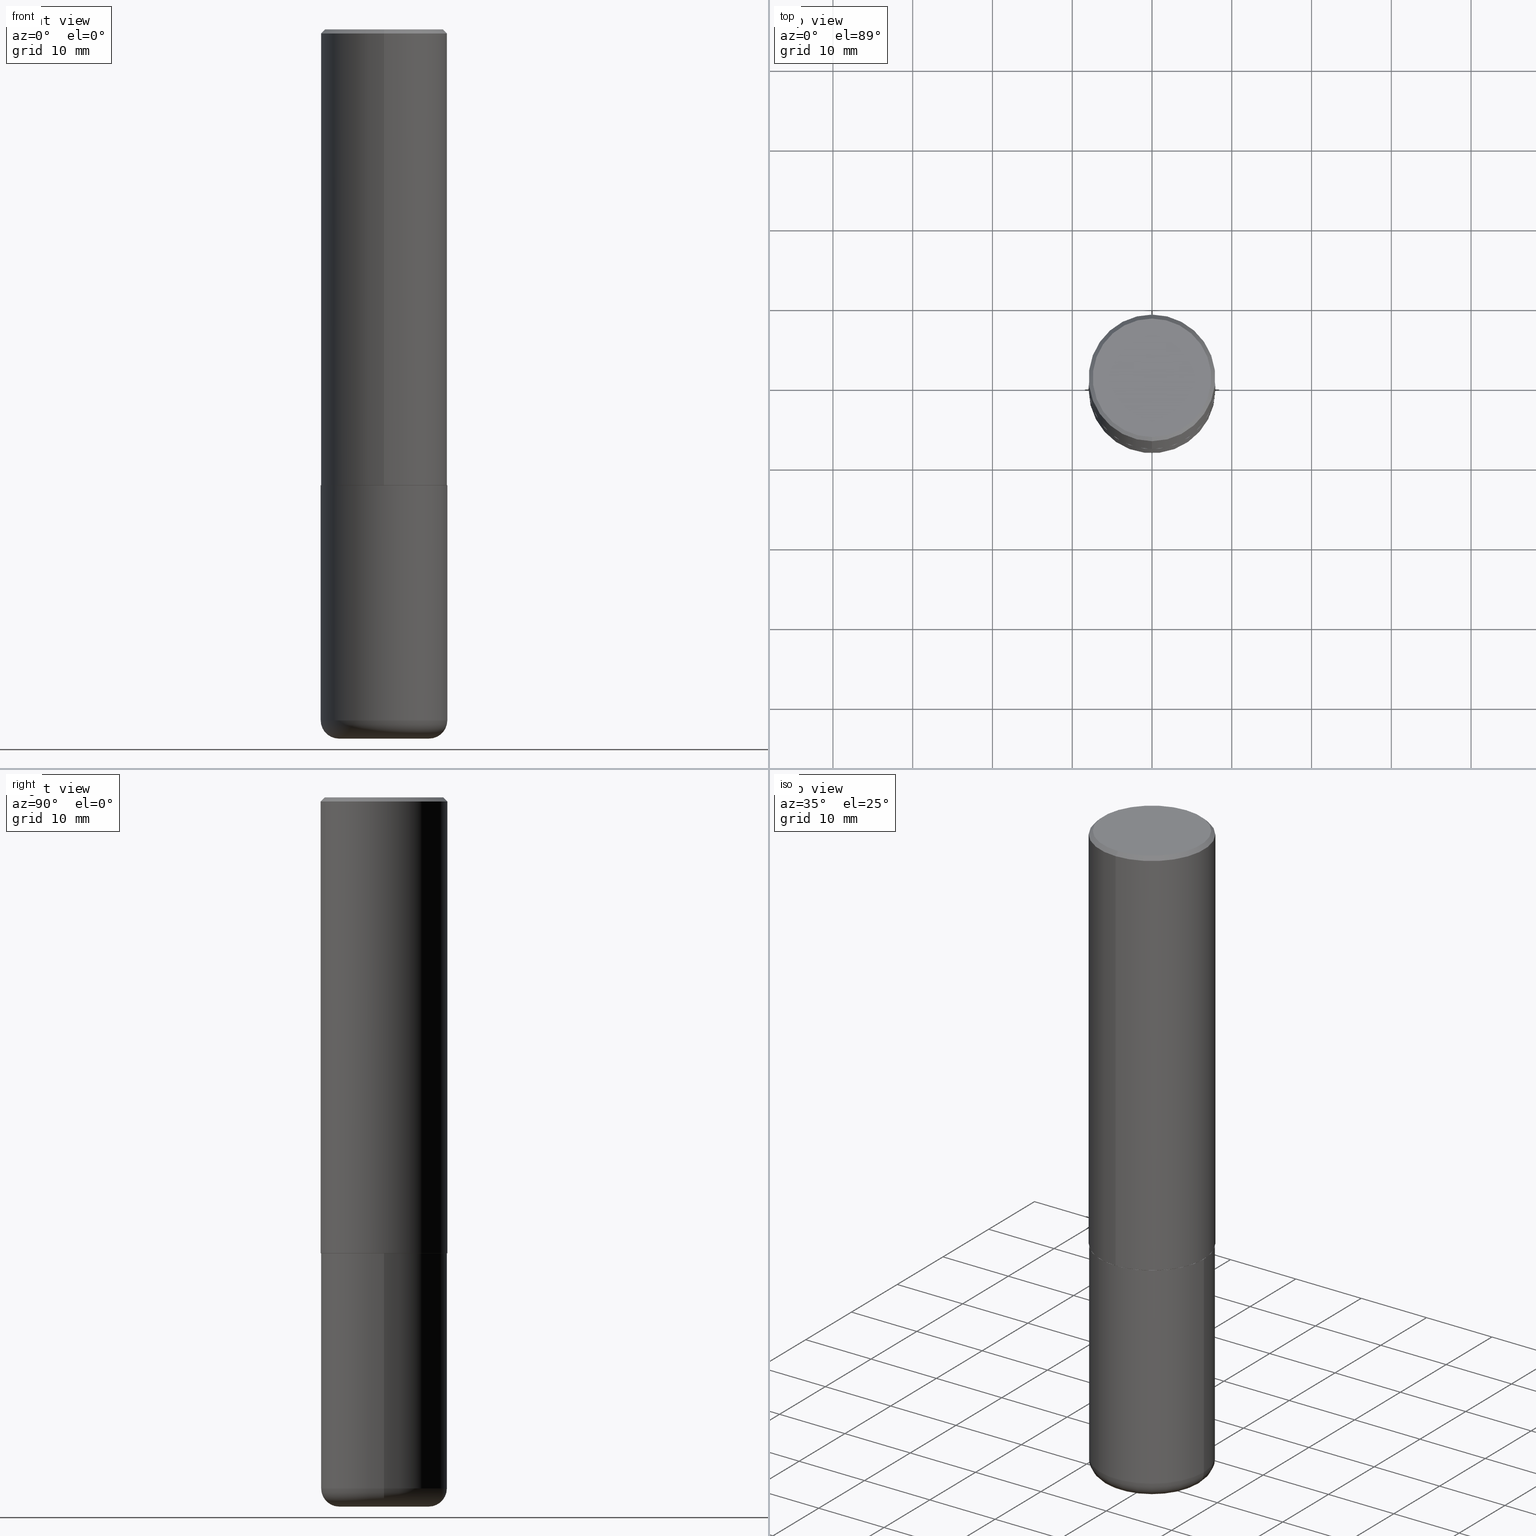
[diagram: canonical four-view strip — front | top / right | iso, engineering-drawing reading convention]
A machine part, canonical four-view strip (front | top / right | iso — engineering-drawing reading convention). The complete STEP part file that produces these views, byte-faithful:
ISO-10303-21;
HEADER;
FILE_DESCRIPTION (( 'STEP AP203' ),
    '1' );
FILE_NAME ('38283.STEP',
    '2024-03-02T20:47:42',
    ( '' ),
    ( '' ),
    'SwSTEP 2.0',
    'SolidWorks 2023',
    '' );
FILE_SCHEMA (( 'CONFIG_CONTROL_DESIGN' ));
ENDSEC;

DATA;
#1 = CARTESIAN_POINT ( 'NONE',  ( 4.892540898795069594E-31, -6.980666680272634172E-17, -0.02000000000000006981 ) ) ;
#2 = LINE ( 'NONE', #200, #236 ) ;
#3 = CIRCLE ( 'NONE', #415, 0.3125000000000000000 ) ;
#4 = AXIS2_PLACEMENT_3D ( 'NONE', #311, #57, #281 ) ;
#5 = LOCAL_TIME ( 15, 47, 42.00000000000000000, #256 ) ;
#6 = CARTESIAN_POINT ( 'NONE',  ( 5.504108511144434074E-29, -7.853250015306685809E-15, -2.249999999999999556 ) ) ;
#7 = CARTESIAN_POINT ( 'NONE',  ( 0.3124999999999998890, -1.408812720223208442E-14, -3.410000000000000142 ) ) ;
#8 = EDGE_CURVE ( 'NONE', #356, #210, #254, .T. ) ;
#9 = CARTESIAN_POINT ( 'NONE',  ( 2.220446049250313475E-15, 0.3125000000000001665, -1.090729168792595755E-15 ) ) ;
#10 = VECTOR ( 'NONE', #129, 39.37007874015748854 ) ;
#11 = AXIS2_PLACEMENT_3D ( 'NONE', #288, #283, #92 ) ;
#12 = DIRECTION ( 'NONE',  ( 6.982962677686265133E-15, 1.000000000000000000, -3.496765431890256920E-15 ) ) ;
#13 = ORIENTED_EDGE ( 'NONE', *, *, #267, .T. ) ;
#14 = EDGE_CURVE ( 'NONE', #58, #114, #204, .T. ) ;
#15 = DIRECTION ( 'NONE',  ( 7.105427357601001859E-15, 1.000000000000000000, -3.491481338843145583E-15 ) ) ;
#16 = EDGE_LOOP ( 'NONE', ( #304, #60, #81, #366 ) ) ;
#17 = EDGE_CURVE ( 'NONE', #282, #50, #32, .T. ) ;
#18 = ADVANCED_BREP_SHAPE_REPRESENTATION ( '38283', ( #369, #108, #22 ), #96 ) ;
#19 = FACE_OUTER_BOUND ( 'NONE', #335, .T. ) ;
#20 = ORIENTED_EDGE ( 'NONE', *, *, #192, .T. ) ;
#21 = AXIS2_PLACEMENT_3D ( 'NONE', #231, #349, #324 ) ;
#22 = AXIS2_PLACEMENT_3D ( 'NONE', #411, #255, #377 ) ;
#23 = DIRECTION ( 'NONE',  ( -2.446270449397526442E-29, 3.490333340136305154E-15, 1.000000000000000000 ) ) ;
#24 = VERTEX_POINT ( 'NONE', #235 ) ;
#25 = DATE_AND_TIME ( #378, #5 ) ;
#26 = ADVANCED_FACE ( 'NONE', ( #172 ), #144, .F. ) ;
#27 = EDGE_LOOP ( 'NONE', ( #48, #215, #183, #273 ) ) ;
#28 = PRODUCT ( '38283', '38283', '', ( #94 ) ) ;
#29 =( LENGTH_UNIT ( ) NAMED_UNIT ( * ) SI_UNIT ( $, .METRE. ) );
#30 = CONICAL_SURFACE ( 'NONE', #166, 0.3114999999999999991, 0.7853981633974141952 ) ;
#31 = AXIS2_PLACEMENT_3D ( 'NONE', #80, #146, #400 ) ;
#32 = LINE ( 'NONE', #90, #212 ) ;
#33 = EDGE_CURVE ( 'NONE', #399, #58, #264, .T. ) ;
#34 = APPLICATION_PROTOCOL_DEFINITION ( 'international standard', 'config_control_design', 1994, #64 ) ;
#35 = DIRECTION ( 'NONE',  ( -6.982962677686265133E-15, -1.000000000000000000, 3.496765431890256920E-15 ) ) ;
#36 = COORDINATED_UNIVERSAL_TIME_OFFSET ( 5, 0, .BEHIND. ) ;
#37 = VECTOR ( 'NONE', #333, 39.37007874015748143 ) ;
#38 = CIRCLE ( 'NONE', #4, 0.3114999999999999991 ) ;
#39 = PLANE ( 'NONE',  #402 ) ;
#40 = APPROVAL ( #393, 'UNSPECIFIED' ) ;
#41 = EDGE_LOOP ( 'NONE', ( #185, #392, #20, #155 ) ) ;
#42 = DIRECTION ( 'NONE',  ( 1.000000000000000000, -6.982962677686269077E-15, 0.000000000000000000 ) ) ;
#43 = CIRCLE ( 'NONE', #197, 0.3125000000000002776 ) ;
#44 = PERSON_AND_ORGANIZATION ( #316, #193 ) ;
#45 = CC_DESIGN_PERSON_AND_ORGANIZATION_ASSIGNMENT ( #65, #251, ( #28 ) ) ;
#46 = CARTESIAN_POINT ( 'NONE',  ( 8.339048629091315302E-29, -1.190595136545512608E-14, -3.410000000000000142 ) ) ;
#47 = DIMENSIONAL_EXPONENTS ( 1.000000000000000000, 0.000000000000000000, 0.000000000000000000, 0.000000000000000000, 0.000000000000000000, 0.000000000000000000, 0.000000000000000000 ) ;
#48 = ORIENTED_EDGE ( 'NONE', *, *, #17, .F. ) ;
#49 = DIRECTION ( 'NONE',  ( -2.445468806185136597E-29, 3.491481338843145583E-15, 1.000000000000000000 ) ) ;
#50 = VERTEX_POINT ( 'NONE', #175 ) ;
#51 = DIRECTION ( 'NONE',  ( -1.000000000000000000, 7.105427357600996337E-15, 0.000000000000000000 ) ) ;
#52 = ADVANCED_FACE ( 'NONE', ( #292 ), #390, .T. ) ;
#53 = EDGE_LOOP ( 'NONE', ( #56, #13, #119, #107 ) ) ;
#54 = AXIS2_PLACEMENT_3D ( 'NONE', #240, #340, #59 ) ;
#55 = DIRECTION ( 'NONE',  ( -6.982962677686266711E-15, -1.000000000000000000, 3.490333340136305549E-15 ) ) ;
#56 = ORIENTED_EDGE ( 'NONE', *, *, #269, .F. ) ;
#57 = DIRECTION ( 'NONE',  ( -2.446270449397526442E-29, 3.490333340136305154E-15, 1.000000000000000000 ) ) ;
#58 = VERTEX_POINT ( 'NONE', #331 ) ;
#59 = DIRECTION ( 'NONE',  ( -6.982962677686265922E-15, -1.000000000000000000, 3.496765431890253764E-15 ) ) ;
#60 = ORIENTED_EDGE ( 'NONE', *, *, #337, .T. ) ;
#61 =( CONVERSION_BASED_UNIT ( 'INCH', #346 ) LENGTH_UNIT ( ) NAMED_UNIT ( #47 ) );
#62 = CC_DESIGN_PERSON_AND_ORGANIZATION_ASSIGNMENT ( #389, #105, ( #173 ) ) ;
#63 = EDGE_LOOP ( 'NONE', ( #275, #143 ) ) ;
#64 = APPLICATION_CONTEXT ( 'configuration controlled 3d designs of mechanical parts and assemblies' ) ;
#65 = PERSON_AND_ORGANIZATION ( #316, #193 ) ;
#66 = CIRCLE ( 'NONE', #291, 0.3125000000000000000 ) ;
#67 = COORDINATED_UNIVERSAL_TIME_OFFSET ( 5, 0, .BEHIND. ) ;
#68 = DATE_TIME_ROLE ( 'classification_date' ) ;
#69 = DIRECTION ( 'NONE',  ( 1.000000000000000000, -6.982962677686265133E-15, 0.000000000000000000 ) ) ;
#70 = COORDINATED_UNIVERSAL_TIME_OFFSET ( 5, 0, .BEHIND. ) ;
#71 = CARTESIAN_POINT ( 'NONE',  ( 8.339048629091315302E-29, -1.190595136545512608E-14, -3.410000000000000142 ) ) ;
#72 = DIRECTION ( 'NONE',  ( 1.000000000000000000, -6.982962677686264344E-15, 4.883557194083111780E-29 ) ) ;
#73 = PERSON_AND_ORGANIZATION_ROLE ( 'classification_officer' ) ;
#74 = DIRECTION ( 'NONE',  ( -2.445468806185136597E-29, 3.491481338843145583E-15, 1.000000000000000000 ) ) ;
#75 = LOCAL_TIME ( 15, 47, 42.00000000000000000, #230 ) ;
#76 = ORIENTED_EDGE ( 'NONE', *, *, #127, .F. ) ;
#77 = DIRECTION ( 'NONE',  ( -1.000000000000000000, 6.982962677686265922E-15, -4.876176775795935793E-29 ) ) ;
#78 = CARTESIAN_POINT ( 'NONE',  ( -0.2225000000000000033, -1.032499377838890215E-14, -3.410000000000000142 ) ) ;
#79 = ORIENTED_EDGE ( 'NONE', *, *, #418, .F. ) ;
#80 = CARTESIAN_POINT ( 'NONE',  ( 0.000000000000000000, 0.000000000000000000, 0.000000000000000000 ) ) ;
#81 = ORIENTED_EDGE ( 'NONE', *, *, #8, .T. ) ;
#82 = CIRCLE ( 'NONE', #317, 0.3125000000000000000 ) ;
#83 = CIRCLE ( 'NONE', #134, 0.2225000000000000033 ) ;
#84 = CARTESIAN_POINT ( 'NONE',  ( -0.3125000000000000000, -7.660446139675788393E-15, -2.249999999999999556 ) ) ;
#85 = ORIENTED_EDGE ( 'NONE', *, *, #269, .T. ) ;
#86 = CARTESIAN_POINT ( 'NONE',  ( -2.182175836776905099E-15, -0.3125000000000081601, -2.248999999999998334 ) ) ;
#87 = EDGE_LOOP ( 'NONE', ( #363, #374, #341, #332 ) ) ;
#88 = DIRECTION ( 'NONE',  ( -6.982962677686265922E-15, -1.000000000000000000, 3.507991003100177457E-15 ) ) ;
#89 = CIRCLE ( 'NONE', #313, 0.08999999999999964972 ) ;
#90 = CARTESIAN_POINT ( 'NONE',  ( -2.143905624303602824E-15, -0.3125000000000000555, -0.01999999999999897693 ) ) ;
#91 = ORIENTED_EDGE ( 'NONE', *, *, #201, .F. ) ;
#92 = DIRECTION ( 'NONE',  ( 1.000000000000000000, -6.982962677686266711E-15, 4.876176775795936353E-29 ) ) ;
#93 = ADVANCED_FACE ( 'NONE', ( #100 ), #220, .T. ) ;
#94 = MECHANICAL_CONTEXT ( 'NONE', #407, 'mechanical' ) ;
#95 = PERSON_AND_ORGANIZATION ( #316, #193 ) ;
#96 =( GEOMETRIC_REPRESENTATION_CONTEXT ( 3 ) GLOBAL_UNCERTAINTY_ASSIGNED_CONTEXT ( ( #110 ) ) GLOBAL_UNIT_ASSIGNED_CONTEXT ( ( #61, #315, #222 ) ) REPRESENTATION_CONTEXT ( 'NONE', 'WORKASPACE' ) );
#97 = DATE_TIME_ROLE ( 'creation_date' ) ;
#98 = PRODUCT_RELATED_PRODUCT_CATEGORY ( 'detail', '', ( #28 ) ) ;
#99 = CARTESIAN_POINT ( 'NONE',  ( -2.182175836776959136E-15, -0.3125000000000001665, 1.090729168792595755E-15 ) ) ;
#100 = FACE_OUTER_BOUND ( 'NONE', #87, .T. ) ;
#101 = CLOSED_SHELL ( 'NONE', ( #242, #360, #213, #365, #248, #104, #141, #178 ) ) ;
#102 = AXIS2_PLACEMENT_3D ( 'NONE', #284, #225, #409 ) ;
#103 = DIRECTION ( 'NONE',  ( 2.438088387897960049E-29, -3.491481338843145188E-15, -1.000000000000000000 ) ) ;
#104 = ADVANCED_FACE ( 'NONE', ( #302 ), #30, .T. ) ;
#105 = PERSON_AND_ORGANIZATION_ROLE ( 'design_supplier' ) ;
#106 = FACE_OUTER_BOUND ( 'NONE', #63, .T. ) ;
#107 = ORIENTED_EDGE ( 'NONE', *, *, #413, .F. ) ;
#108 = MANIFOLD_SOLID_BREP ( 'Body-Move/Copy2[2]', #101 ) ;
#109 = CARTESIAN_POINT ( 'NONE',  ( 8.559140821647976968E-29, -1.222018468595100619E-14, -3.499999999999999112 ) ) ;
#110 = UNCERTAINTY_MEASURE_WITH_UNIT (LENGTH_MEASURE( 1.000000000000000082E-05 ), #61, 'distance_accuracy_value', 'NONE');
#111 = LOCAL_TIME ( 15, 47, 42.00000000000000000, #67 ) ;
#112 = ORIENTED_EDGE ( 'NONE', *, *, #33, .F. ) ;
#113 = DIRECTION ( 'NONE',  ( -6.982962677686265133E-15, -1.000000000000000000, 3.490333340136304366E-15 ) ) ;
#114 = VERTEX_POINT ( 'NONE', #7 ) ;
#115 = EDGE_CURVE ( 'NONE', #114, #24, #261, .T. ) ;
#116 = CARTESIAN_POINT ( 'NONE',  ( 5.501662240695034719E-29, -7.849759681966548232E-15, -2.248999999999999222 ) ) ;
#117 = CARTESIAN_POINT ( 'NONE',  ( 4.892540898795069594E-31, -6.980666680272634172E-17, -0.02000000000000006981 ) ) ;
#118 = AXIS2_PLACEMENT_3D ( 'NONE', #262, #355, #77 ) ;
#119 = ORIENTED_EDGE ( 'NONE', *, *, #135, .T. ) ;
#120 = CONICAL_SURFACE ( 'NONE', #238, 0.3125000000000000000, 0.7853981633974473908 ) ;
#121 = CARTESIAN_POINT ( 'NONE',  ( -2.075300644325887493E-15, -0.2924999999999999267, 1.050466299798821304E-15 ) ) ;
#122 = CYLINDRICAL_SURFACE ( 'NONE', #396, 0.3125000000000000000 ) ;
#123 = ORIENTED_EDGE ( 'NONE', *, *, #195, .T. ) ;
#124 = EDGE_LOOP ( 'NONE', ( #91, #112 ) ) ;
#125 = AXIS2_PLACEMENT_3D ( 'NONE', #109, #268, #301 ) ;
#126 = APPROVAL_PERSON_ORGANIZATION ( #194, #165, #382 ) ;
#127 = EDGE_CURVE ( 'NONE', #24, #344, #147, .T. ) ;
#128 = CARTESIAN_POINT ( 'NONE',  ( -0.3125000000000000000, 2.220446049250313081E-15, -1.537167215704658232E-29 ) ) ;
#129 = DIRECTION ( 'NONE',  ( -4.937700262164378437E-15, -0.7071067811865208164, 0.7071067811865739960 ) ) ;
#130 = CC_DESIGN_DATE_AND_TIME_ASSIGNMENT ( #326, #68, ( #180 ) ) ;
#131 = PERSON_AND_ORGANIZATION_ROLE ( 'creator' ) ;
#132 = CARTESIAN_POINT ( 'NONE',  ( -2.175192874099216718E-15, -0.3115000000000078817, -2.249999999999998668 ) ) ;
#133 = APPROVAL_STATUS ( 'not_yet_approved' ) ;
#134 = AXIS2_PLACEMENT_3D ( 'NONE', #266, #327, #42 ) ;
#135 = EDGE_CURVE ( 'NONE', #210, #50, #171, .T. ) ;
#136 = DIRECTION ( 'NONE',  ( -6.982962677686265922E-15, -1.000000000000000000, 3.507991003100177457E-15 ) ) ;
#137 = PERSON_AND_ORGANIZATION ( #316, #193 ) ;
#138 = DIRECTION ( 'NONE',  ( 1.000000000000000000, -6.982962677686269077E-15, 0.000000000000000000 ) ) ;
#139 = ORIENTED_EDGE ( 'NONE', *, *, #33, .T. ) ;
#140 = CALENDAR_DATE ( 2024, 2, 3 ) ;
#141 = ADVANCED_FACE ( 'NONE', ( #106 ), #145, .F. ) ;
#142 = DIRECTION ( 'NONE',  ( 5.024295867787889629E-15, 0.7071067811865257013, 0.7071067811865691111 ) ) ;
#143 = ORIENTED_EDGE ( 'NONE', *, *, #337, .F. ) ;
#144 = PLANE ( 'NONE',  #118 ) ;
#145 = PLANE ( 'NONE',  #21 ) ;
#146 = DIRECTION ( 'NONE',  ( -2.446270449397526442E-29, 3.490333340136305154E-15, 1.000000000000000000 ) ) ;
#147 = CIRCLE ( 'NONE', #187, 0.3125000000000000000 ) ;
#148 = CC_DESIGN_SECURITY_CLASSIFICATION ( #180, ( #173 ) ) ;
#149 = DIRECTION ( 'NONE',  ( 1.000000000000000000, -6.982962677686266711E-15, 4.876176775795936353E-29 ) ) ;
#150 = EDGE_LOOP ( 'NONE', ( #314, #188 ) ) ;
#151 = FACE_OUTER_BOUND ( 'NONE', #221, .T. ) ;
#152 = ORIENTED_EDGE ( 'NONE', *, *, #260, .T. ) ;
#153 = DIRECTION ( 'NONE',  ( 2.446270449397526442E-29, -3.490333340136305154E-15, -1.000000000000000000 ) ) ;
#154 = CC_DESIGN_DATE_AND_TIME_ASSIGNMENT ( #25, #97, ( #227 ) ) ;
#155 = ORIENTED_EDGE ( 'NONE', *, *, #207, .F. ) ;
#156 = LOCAL_TIME ( 15, 47, 42.00000000000000000, #36 ) ;
#157 = DIRECTION ( 'NONE',  ( 6.982962677686265133E-15, 1.000000000000000000, -3.496765431890256920E-15 ) ) ;
#158 = ORIENTED_EDGE ( 'NONE', *, *, #199, .T. ) ;
#159 = CALENDAR_DATE ( 2024, 2, 3 ) ;
#160 = APPROVAL_STATUS ( 'not_yet_approved' ) ;
#161 = EDGE_CURVE ( 'NONE', #344, #24, #82, .T. ) ;
#162 = VECTOR ( 'NONE', #343, 39.37007874015748143 ) ;
#163 = CALENDAR_DATE ( 2024, 2, 3 ) ;
#164 = APPLICATION_PROTOCOL_DEFINITION ( 'international standard', 'config_control_design', 1994, #407 ) ;
#165 = APPROVAL ( #160, 'UNSPECIFIED' ) ;
#166 = AXIS2_PLACEMENT_3D ( 'NONE', #6, #233, #136 ) ;
#167 = PERSON_AND_ORGANIZATION_ROLE ( 'creator' ) ;
#168 = AXIS2_PLACEMENT_3D ( 'NONE', #271, #405, #177 ) ;
#169 = SECURITY_CLASSIFICATION_LEVEL ( 'unclassified' ) ;
#170 = DIRECTION ( 'NONE',  ( 6.982962677686265922E-15, 1.000000000000000000, -3.490333340136305154E-15 ) ) ;
#171 = LINE ( 'NONE', #99, #37 ) ;
#172 = FACE_OUTER_BOUND ( 'NONE', #218, .T. ) ;
#173 = PRODUCT_DEFINITION_FORMATION_WITH_SPECIFIED_SOURCE ( 'ANY', '', #28, .NOT_KNOWN. ) ;
#174 = SHAPE_DEFINITION_REPRESENTATION ( #286, #18 ) ;
#175 = CARTESIAN_POINT ( 'NONE',  ( -2.143905624303602824E-15, -0.3125000000000000555, -0.01999999999999897693 ) ) ;
#176 = EDGE_CURVE ( 'NONE', #401, #114, #3, .T. ) ;
#177 = DIRECTION ( 'NONE',  ( -6.982962677686266711E-15, -1.000000000000000000, 3.490333340136305549E-15 ) ) ;
#178 = ADVANCED_FACE ( 'NONE', ( #386 ), #39, .F. ) ;
#179 = DIRECTION ( 'NONE',  ( -2.446270449397526161E-29, 3.490333340136305154E-15, 1.000000000000000000 ) ) ;
#180 = SECURITY_CLASSIFICATION ( '', '', #169 ) ;
#181 = VERTEX_POINT ( 'NONE', #295 ) ;
#182 = FACE_OUTER_BOUND ( 'NONE', #239, .T. ) ;
#183 = ORIENTED_EDGE ( 'NONE', *, *, #207, .T. ) ;
#184 = LINE ( 'NONE', #338, #388 ) ;
#185 = ORIENTED_EDGE ( 'NONE', *, *, #250, .F. ) ;
#186 = CARTESIAN_POINT ( 'NONE',  ( 5.504108511144434074E-29, -7.853250015306685809E-15, -2.249999999999999556 ) ) ;
#187 = AXIS2_PLACEMENT_3D ( 'NONE', #383, #74, #353 ) ;
#188 = ORIENTED_EDGE ( 'NONE', *, *, #250, .T. ) ;
#189 = CARTESIAN_POINT ( 'NONE',  ( -0.2225000000000000033, -1.016236620754480236E-14, -3.499999999999999112 ) ) ;
#190 = CARTESIAN_POINT ( 'NONE',  ( 2.182175836776958741E-15, 0.3124999999999999445, -0.02000000000000116268 ) ) ;
#191 = CC_DESIGN_APPROVAL ( #216, ( #173 ) ) ;
#192 = EDGE_CURVE ( 'NONE', #50, #404, #321, .T. ) ;
#193 = ORGANIZATION ( 'UNSPECIFIED', 'UNSPECIFIED', '' ) ;
#194 = PERSON_AND_ORGANIZATION ( #316, #193 ) ;
#195 = EDGE_CURVE ( 'NONE', #114, #401, #312, .T. ) ;
#196 = CARTESIAN_POINT ( 'NONE',  ( 4.892540898795069594E-31, -6.980666680272634172E-17, -0.02000000000000006981 ) ) ;
#197 = AXIS2_PLACEMENT_3D ( 'NONE', #116, #23, #217 ) ;
#198 = CARTESIAN_POINT ( 'NONE',  ( 1.456070253248337680E-28, -3.625606728355569702E-15, -3.499999999999999112 ) ) ;
#199 = EDGE_CURVE ( 'NONE', #181, #354, #2, .T. ) ;
#200 = CARTESIAN_POINT ( 'NONE',  ( 2.213340621892766504E-15, 0.3114999999999921720, -2.250000000000000888 ) ) ;
#201 = EDGE_CURVE ( 'NONE', #58, #399, #83, .T. ) ;
#202 = DIRECTION ( 'NONE',  ( -2.445468806185136597E-29, 3.491481338843145583E-15, 1.000000000000000000 ) ) ;
#203 = DATE_AND_TIME ( #159, #75 ) ;
#204 = CIRCLE ( 'NONE', #305, 0.08999999999999964972 ) ;
#205 = CARTESIAN_POINT ( 'NONE',  ( 2.042516583223232540E-15, 0.2924999999999999267, -1.006150603085393049E-15 ) ) ;
#206 = AXIS2_PLACEMENT_3D ( 'NONE', #398, #308, #55 ) ;
#207 = EDGE_CURVE ( 'NONE', #280, #404, #184, .T. ) ;
#208 = DIRECTION ( 'NONE',  ( -2.445468806185136877E-29, 3.491481338843145188E-15, 1.000000000000000000 ) ) ;
#209 = FACE_OUTER_BOUND ( 'NONE', #53, .T. ) ;
#210 = VERTEX_POINT ( 'NONE', #86 ) ;
#211 = CARTESIAN_POINT ( 'NONE',  ( 4.892540898795069594E-31, -6.980666680272634172E-17, -0.02000000000000006981 ) ) ;
#212 = VECTOR ( 'NONE', #226, 39.37007874015748143 ) ;
#213 = ADVANCED_FACE ( 'NONE', ( #361 ), #120, .T. ) ;
#214 = FACE_OUTER_BOUND ( 'NONE', #27, .T. ) ;
#215 = ORIENTED_EDGE ( 'NONE', *, *, #290, .F. ) ;
#216 = APPROVAL ( #133, 'UNSPECIFIED' ) ;
#217 = DIRECTION ( 'NONE',  ( -6.982962677686265922E-15, -1.000000000000000000, 3.496765431890253764E-15 ) ) ;
#218 = EDGE_LOOP ( 'NONE', ( #263, #277 ) ) ;
#219 = CARTESIAN_POINT ( 'NONE',  ( -2.175192874099216718E-15, -0.3115000000000078817, -2.249999999999998668 ) ) ;
#220 = TOROIDAL_SURFACE ( 'NONE', #345, 0.2225000000000000033, 0.08999999999999964972 ) ;
#221 = EDGE_LOOP ( 'NONE', ( #123, #224, #76, #387 ) ) ;
#222 =( NAMED_UNIT ( * ) SI_UNIT ( $, .STERADIAN. ) SOLID_ANGLE_UNIT ( ) );
#223 = CC_DESIGN_PERSON_AND_ORGANIZATION_ASSIGNMENT ( #44, #73, ( #180 ) ) ;
#224 = ORIENTED_EDGE ( 'NONE', *, *, #418, .T. ) ;
#225 = DIRECTION ( 'NONE',  ( -2.445468806185136597E-29, 3.491481338843145583E-15, 1.000000000000000000 ) ) ;
#226 = DIRECTION ( 'NONE',  ( -4.851104656540959542E-15, -0.7071067811865493491, -0.7071067811865457964 ) ) ;
#227 = PRODUCT_DEFINITION ( 'UNKNOWN', '', #173, #358 ) ;
#228 = CIRCLE ( 'NONE', #279, 0.3114999999999999991 ) ;
#229 = LINE ( 'NONE', #128, #162 ) ;
#230 = COORDINATED_UNIVERSAL_TIME_OFFSET ( 5, 0, .BEHIND. ) ;
#231 = CARTESIAN_POINT ( 'NONE',  ( 5.504108511144434074E-29, -7.853250015306685809E-15, -2.249999999999999556 ) ) ;
#232 = VECTOR ( 'NONE', #179, 39.37007874015748143 ) ;
#233 = DIRECTION ( 'NONE',  ( -2.446270449397526442E-29, 3.490333340136305154E-15, 1.000000000000000000 ) ) ;
#234 = DIRECTION ( 'NONE',  ( -1.000000000000000000, 6.982962677686265922E-15, -4.876176775795935793E-29 ) ) ;
#235 = CARTESIAN_POINT ( 'NONE',  ( 0.3125000000000000000, -1.003800884917403364E-14, -2.249999999999999556 ) ) ;
#236 = VECTOR ( 'NONE', #142, 39.37007874015748854 ) ;
#237 = DIRECTION ( 'NONE',  ( -6.982962677686265133E-15, -1.000000000000000000, 3.496765431890256920E-15 ) ) ;
#238 = AXIS2_PLACEMENT_3D ( 'NONE', #211, #153, #157 ) ;
#239 = EDGE_LOOP ( 'NONE', ( #297, #158, #310, #253 ) ) ;
#240 = CARTESIAN_POINT ( 'NONE',  ( 5.501662240695034719E-29, -7.849759681966548232E-15, -2.248999999999999222 ) ) ;
#241 = DIRECTION ( 'NONE',  ( -2.446270449397526442E-29, 3.490333340136305154E-15, 1.000000000000000000 ) ) ;
#242 = ADVANCED_FACE ( 'NONE', ( #182 ), #372, .T. ) ;
#243 = ORIENTED_EDGE ( 'NONE', *, *, #161, .F. ) ;
#244 = FACE_OUTER_BOUND ( 'NONE', #370, .T. ) ;
#245 = ORIENTED_EDGE ( 'NONE', *, *, #300, .F. ) ;
#246 = DIRECTION ( 'NONE',  ( -2.446270449397526442E-29, 3.490333340136305154E-15, 1.000000000000000000 ) ) ;
#247 = ORIENTED_EDGE ( 'NONE', *, *, #176, .F. ) ;
#248 = ADVANCED_FACE ( 'NONE', ( #209 ), #334, .T. ) ;
#249 = DIRECTION ( 'NONE',  ( -2.445468806185136597E-29, 3.491481338843145583E-15, 1.000000000000000000 ) ) ;
#250 = EDGE_CURVE ( 'NONE', #282, #280, #410, .T. ) ;
#251 = PERSON_AND_ORGANIZATION_ROLE ( 'design_owner' ) ;
#252 = CLOSED_SHELL ( 'NONE', ( #319, #93, #26, #395, #385, #52 ) ) ;
#253 = ORIENTED_EDGE ( 'NONE', *, *, #8, .F. ) ;
#254 = LINE ( 'NONE', #132, #10 ) ;
#255 = DIRECTION ( 'NONE',  ( 0.000000000000000000, 0.000000000000000000, 1.000000000000000000 ) ) ;
#256 = COORDINATED_UNIVERSAL_TIME_OFFSET ( 5, 0, .BEHIND. ) ;
#257 = AXIS2_PLACEMENT_3D ( 'NONE', #1, #394, #237 ) ;
#258 = CC_DESIGN_APPROVAL ( #40, ( #180 ) ) ;
#259 = APPROVAL_ROLE ( '' ) ;
#260 = EDGE_CURVE ( 'NONE', #210, #354, #43, .T. ) ;
#261 = LINE ( 'NONE', #391, #328 ) ;
#262 = CARTESIAN_POINT ( 'NONE',  ( 5.502304813916556222E-29, -7.855833012397075293E-15, -2.249999999999999556 ) ) ;
#263 = ORIENTED_EDGE ( 'NONE', *, *, #127, .T. ) ;
#264 = CIRCLE ( 'NONE', #125, 0.2225000000000000033 ) ;
#265 = CONICAL_SURFACE ( 'NONE', #285, 0.3125000000000000000, 0.7853981633974473908 ) ;
#266 = CARTESIAN_POINT ( 'NONE',  ( 8.559140821647976968E-29, -1.222018468595100619E-14, -3.499999999999999112 ) ) ;
#267 = EDGE_CURVE ( 'NONE', #354, #210, #318, .T. ) ;
#268 = DIRECTION ( 'NONE',  ( -2.445468806185136597E-29, 3.491481338843145583E-15, 1.000000000000000000 ) ) ;
#269 = EDGE_CURVE ( 'NONE', #354, #404, #336, .T. ) ;
#270 = DIRECTION ( 'NONE',  ( -2.445468806185136597E-29, 3.491481338843145583E-15, 1.000000000000000000 ) ) ;
#271 = CARTESIAN_POINT ( 'NONE',  ( -7.227211954301492276E-46, 1.031177024868314748E-31, 2.954379780895211224E-17 ) ) ;
#272 = AXIS2_PLACEMENT_3D ( 'NONE', #278, #246, #113 ) ;
#273 = ORIENTED_EDGE ( 'NONE', *, *, #413, .T. ) ;
#274 = CARTESIAN_POINT ( 'NONE',  ( 2.112346210000095443E-15, 0.2924999999999999267, -9.913787041809170300E-16 ) ) ;
#275 = ORIENTED_EDGE ( 'NONE', *, *, #287, .F. ) ;
#276 = CARTESIAN_POINT ( 'NONE',  ( 0.000000000000000000, 0.000000000000000000, 0.000000000000000000 ) ) ;
#277 = ORIENTED_EDGE ( 'NONE', *, *, #161, .T. ) ;
#278 = CARTESIAN_POINT ( 'NONE',  ( 0.000000000000000000, 0.000000000000000000, 0.000000000000000000 ) ) ;
#279 = AXIS2_PLACEMENT_3D ( 'NONE', #368, #241, #88 ) ;
#280 = VERTEX_POINT ( 'NONE', #274 ) ;
#281 = DIRECTION ( 'NONE',  ( -6.982962677686265922E-15, -1.000000000000000000, 3.507991003100177457E-15 ) ) ;
#282 = VERTEX_POINT ( 'NONE', #121 ) ;
#283 = DIRECTION ( 'NONE',  ( -2.445468806185136597E-29, 3.491481338843145583E-15, 1.000000000000000000 ) ) ;
#284 = CARTESIAN_POINT ( 'NONE',  ( 8.339048629091315302E-29, -1.190595136545512608E-14, -3.410000000000000142 ) ) ;
#285 = AXIS2_PLACEMENT_3D ( 'NONE', #117, #306, #12 ) ;
#286 = PRODUCT_DEFINITION_SHAPE ( 'NONE', 'NONE',  #227 ) ;
#287 = EDGE_CURVE ( 'NONE', #356, #181, #38, .T. ) ;
#288 = CARTESIAN_POINT ( 'NONE',  ( 0.000000000000000000, 0.000000000000000000, 0.000000000000000000 ) ) ;
#289 = APPROVAL_DATE_TIME ( #414, #165 ) ;
#290 = EDGE_CURVE ( 'NONE', #280, #282, #403, .T. ) ;
#291 = AXIS2_PLACEMENT_3D ( 'NONE', #196, #375, #35 ) ;
#292 = FACE_OUTER_BOUND ( 'NONE', #124, .T. ) ;
#293 = CC_DESIGN_PERSON_AND_ORGANIZATION_ASSIGNMENT ( #294, #167, ( #173 ) ) ;
#294 = PERSON_AND_ORGANIZATION ( #316, #193 ) ;
#295 = CARTESIAN_POINT ( 'NONE',  ( 2.216893335571567797E-15, 0.3114999999999921720, -2.250000000000000888 ) ) ;
#296 = DIRECTION ( 'NONE',  ( 2.446270449397526161E-29, -3.490333340136305154E-15, -1.000000000000000000 ) ) ;
#297 = ORIENTED_EDGE ( 'NONE', *, *, #287, .T. ) ;
#298 = AXIS2_PLACEMENT_3D ( 'NONE', #198, #103, #234 ) ;
#299 = APPROVAL_PERSON_ORGANIZATION ( #137, #40, #347 ) ;
#300 = EDGE_CURVE ( 'NONE', #399, #401, #89, .T. ) ;
#301 = DIRECTION ( 'NONE',  ( 1.000000000000000000, -6.982962677686269077E-15, 0.000000000000000000 ) ) ;
#302 = FACE_OUTER_BOUND ( 'NONE', #16, .T. ) ;
#303 = FACE_OUTER_BOUND ( 'NONE', #309, .T. ) ;
#304 = ORIENTED_EDGE ( 'NONE', *, *, #199, .F. ) ;
#305 = AXIS2_PLACEMENT_3D ( 'NONE', #373, #379, #376 ) ;
#306 = DIRECTION ( 'NONE',  ( 2.446270449397526442E-29, -3.490333340136305154E-15, -1.000000000000000000 ) ) ;
#307 = ORIENTED_EDGE ( 'NONE', *, *, #115, .T. ) ;
#308 = DIRECTION ( 'NONE',  ( -2.446270449397526442E-29, 3.490333340136305154E-15, 1.000000000000000000 ) ) ;
#309 = EDGE_LOOP ( 'NONE', ( #152, #85, #339, #325 ) ) ;
#310 = ORIENTED_EDGE ( 'NONE', *, *, #260, .F. ) ;
#311 = CARTESIAN_POINT ( 'NONE',  ( 5.504108511144434074E-29, -7.853250015306685809E-15, -2.249999999999999556 ) ) ;
#312 = CIRCLE ( 'NONE', #371, 0.3125000000000000000 ) ;
#313 = AXIS2_PLACEMENT_3D ( 'NONE', #78, #15, #51 ) ;
#314 = ORIENTED_EDGE ( 'NONE', *, *, #290, .T. ) ;
#315 =( NAMED_UNIT ( * ) PLANE_ANGLE_UNIT ( ) SI_UNIT ( $, .RADIAN. ) );
#316 = PERSON ( 'UNSPECIFIED', 'UNSPECIFIED', 'UNSPECIFIED', ('UNSPECIFIED'), ('UNSPECIFIED'), ('UNSPECIFIED') ) ;
#317 = AXIS2_PLACEMENT_3D ( 'NONE', #351, #270, #69 ) ;
#318 = CIRCLE ( 'NONE', #54, 0.3125000000000002776 ) ;
#319 = ADVANCED_FACE ( 'NONE', ( #151 ), #122, .T. ) ;
#320 = CARTESIAN_POINT ( 'NONE',  ( -0.3124999999999998890, -9.685505316204812997E-15, -3.410000000000000142 ) ) ;
#321 = CIRCLE ( 'NONE', #257, 0.3125000000000000000 ) ;
#322 = TOROIDAL_SURFACE ( 'NONE', #102, 0.2225000000000000033, 0.08999999999999964972 ) ;
#323 = DIRECTION ( 'NONE',  ( 1.000000000000000000, -6.982962677686269077E-15, 0.000000000000000000 ) ) ;
#324 = DIRECTION ( 'NONE',  ( -6.982962677686265922E-15, -1.000000000000000000, 3.490333340136305154E-15 ) ) ;
#325 = ORIENTED_EDGE ( 'NONE', *, *, #135, .F. ) ;
#326 = DATE_AND_TIME ( #140, #156 ) ;
#327 = DIRECTION ( 'NONE',  ( -2.445468806185136597E-29, 3.491481338843145583E-15, 1.000000000000000000 ) ) ;
#328 = VECTOR ( 'NONE', #208, 39.37007874015748143 ) ;
#329 = APPROVAL_PERSON_ORGANIZATION ( #95, #216, #259 ) ;
#330 = CALENDAR_DATE ( 2024, 2, 3 ) ;
#331 = CARTESIAN_POINT ( 'NONE',  ( 0.2225000000000000033, -1.377389388173620116E-14, -3.499999999999999112 ) ) ;
#332 = ORIENTED_EDGE ( 'NONE', *, *, #14, .F. ) ;
#333 = DIRECTION ( 'NONE',  ( -2.446270449397526161E-29, 3.490333340136305154E-15, 1.000000000000000000 ) ) ;
#334 = CYLINDRICAL_SURFACE ( 'NONE', #272, 0.3125000000000001665 ) ;
#335 = EDGE_LOOP ( 'NONE', ( #79, #359, #307, #243 ) ) ;
#336 = LINE ( 'NONE', #9, #232 ) ;
#337 = EDGE_CURVE ( 'NONE', #181, #356, #228, .T. ) ;
#338 = CARTESIAN_POINT ( 'NONE',  ( 2.182175836776958741E-15, 0.3124999999999999445, -0.02000000000000116268 ) ) ;
#339 = ORIENTED_EDGE ( 'NONE', *, *, #192, .F. ) ;
#340 = DIRECTION ( 'NONE',  ( -2.446270449397526442E-29, 3.490333340136305154E-15, 1.000000000000000000 ) ) ;
#341 = ORIENTED_EDGE ( 'NONE', *, *, #195, .F. ) ;
#342 = CYLINDRICAL_SURFACE ( 'NONE', #31, 0.3125000000000001665 ) ;
#343 = DIRECTION ( 'NONE',  ( -2.445468806185136877E-29, 3.491481338843145188E-15, 1.000000000000000000 ) ) ;
#344 = VERTEX_POINT ( 'NONE', #84 ) ;
#345 = AXIS2_PLACEMENT_3D ( 'NONE', #46, #417, #72 ) ;
#346 = LENGTH_MEASURE_WITH_UNIT ( LENGTH_MEASURE( 0.02539999999999999897 ), #29 );
#347 = APPROVAL_ROLE ( '' ) ;
#348 = APPROVAL_DATE_TIME ( #203, #216 ) ;
#349 = DIRECTION ( 'NONE',  ( -2.446270449397526161E-29, 3.490333340136305154E-15, 1.000000000000000000 ) ) ;
#350 = AXIS2_PLACEMENT_3D ( 'NONE', #186, #397, #364 ) ;
#351 = CARTESIAN_POINT ( 'NONE',  ( 5.502304813916556222E-29, -7.855833012397075293E-15, -2.249999999999999556 ) ) ;
#352 = DATE_AND_TIME ( #330, #380 ) ;
#353 = DIRECTION ( 'NONE',  ( 1.000000000000000000, -6.982962677686265133E-15, 0.000000000000000000 ) ) ;
#354 = VERTEX_POINT ( 'NONE', #362 ) ;
#355 = DIRECTION ( 'NONE',  ( 2.438088387897960049E-29, -3.491481338843145188E-15, -1.000000000000000000 ) ) ;
#356 = VERTEX_POINT ( 'NONE', #219 ) ;
#357 = CARTESIAN_POINT ( 'NONE',  ( 8.339048629091315302E-29, -1.190595136545512608E-14, -3.410000000000000142 ) ) ;
#358 = DESIGN_CONTEXT ( 'detailed design', #64, 'design' ) ;
#359 = ORIENTED_EDGE ( 'NONE', *, *, #176, .T. ) ;
#360 = ADVANCED_FACE ( 'NONE', ( #303 ), #342, .T. ) ;
#361 = FACE_OUTER_BOUND ( 'NONE', #41, .T. ) ;
#362 = CARTESIAN_POINT ( 'NONE',  ( 2.220446049250341874E-15, 0.3124999999999924505, -2.249000000000000554 ) ) ;
#363 = ORIENTED_EDGE ( 'NONE', *, *, #201, .T. ) ;
#364 = DIRECTION ( 'NONE',  ( -6.982962677686265922E-15, -1.000000000000000000, 3.507991003100177457E-15 ) ) ;
#365 = ADVANCED_FACE ( 'NONE', ( #214 ), #265, .T. ) ;
#366 = ORIENTED_EDGE ( 'NONE', *, *, #267, .F. ) ;
#367 = DIRECTION ( 'NONE',  ( 4.937700262164543309E-15, 0.7071067811865444641, -0.7071067811865506814 ) ) ;
#368 = CARTESIAN_POINT ( 'NONE',  ( 5.504108511144434074E-29, -7.853250015306685809E-15, -2.249999999999999556 ) ) ;
#369 = MANIFOLD_SOLID_BREP ( 'Body-Move/Copy2[1]', #252 ) ;
#370 = EDGE_LOOP ( 'NONE', ( #245, #139, #408, #247 ) ) ;
#371 = AXIS2_PLACEMENT_3D ( 'NONE', #357, #49, #138 ) ;
#372 = CONICAL_SURFACE ( 'NONE', #350, 0.3114999999999999991, 0.7853981633974141952 ) ;
#373 = CARTESIAN_POINT ( 'NONE',  ( 0.2225000000000000033, -1.345966056124032105E-14, -3.410000000000000142 ) ) ;
#374 = ORIENTED_EDGE ( 'NONE', *, *, #300, .T. ) ;
#375 = DIRECTION ( 'NONE',  ( -2.446270449397526442E-29, 3.490333340136305154E-15, 1.000000000000000000 ) ) ;
#376 = DIRECTION ( 'NONE',  ( 1.000000000000000000, -6.982962677686273810E-15, 0.000000000000000000 ) ) ;
#377 = DIRECTION ( 'NONE',  ( 1.000000000000000000, 0.000000000000000000, 0.000000000000000000 ) ) ;
#378 = CALENDAR_DATE ( 2024, 2, 3 ) ;
#379 = DIRECTION ( 'NONE',  ( -6.982962677686266711E-15, -1.000000000000000000, 3.491481338843145583E-15 ) ) ;
#380 = LOCAL_TIME ( 15, 47, 42.00000000000000000, #70 ) ;
#381 = CC_DESIGN_PERSON_AND_ORGANIZATION_ASSIGNMENT ( #412, #131, ( #227 ) ) ;
#382 = APPROVAL_ROLE ( '' ) ;
#383 = CARTESIAN_POINT ( 'NONE',  ( 5.502304813916556222E-29, -7.855833012397075293E-15, -2.249999999999999556 ) ) ;
#384 = APPROVAL_DATE_TIME ( #352, #40 ) ;
#385 = ADVANCED_FACE ( 'NONE', ( #244 ), #322, .T. ) ;
#386 = FACE_OUTER_BOUND ( 'NONE', #150, .T. ) ;
#387 = ORIENTED_EDGE ( 'NONE', *, *, #115, .F. ) ;
#388 = VECTOR ( 'NONE', #367, 39.37007874015748143 ) ;
#389 = PERSON_AND_ORGANIZATION ( #316, #193 ) ;
#390 = PLANE ( 'NONE',  #298 ) ;
#391 = CARTESIAN_POINT ( 'NONE',  ( 0.3125000000000000000, -2.182175836776958347E-15, 1.523805242436230075E-29 ) ) ;
#392 = ORIENTED_EDGE ( 'NONE', *, *, #17, .T. ) ;
#393 = APPROVAL_STATUS ( 'not_yet_approved' ) ;
#394 = DIRECTION ( 'NONE',  ( -2.446270449397526442E-29, 3.490333340136305154E-15, 1.000000000000000000 ) ) ;
#395 = ADVANCED_FACE ( 'NONE', ( #19 ), #406, .T. ) ;
#396 = AXIS2_PLACEMENT_3D ( 'NONE', #276, #249, #149 ) ;
#397 = DIRECTION ( 'NONE',  ( -2.446270449397526442E-29, 3.490333340136305154E-15, 1.000000000000000000 ) ) ;
#398 = CARTESIAN_POINT ( 'NONE',  ( -7.227211954301492276E-46, 1.031177024868314748E-31, 2.954379780895211224E-17 ) ) ;
#399 = VERTEX_POINT ( 'NONE', #189 ) ;
#400 = DIRECTION ( 'NONE',  ( -6.982962677686265133E-15, -1.000000000000000000, 3.490333340136304366E-15 ) ) ;
#401 = VERTEX_POINT ( 'NONE', #320 ) ;
#402 = AXIS2_PLACEMENT_3D ( 'NONE', #205, #296, #170 ) ;
#403 = CIRCLE ( 'NONE', #168, 0.2924999999999999267 ) ;
#404 = VERTEX_POINT ( 'NONE', #190 ) ;
#405 = DIRECTION ( 'NONE',  ( -2.446270449397526442E-29, 3.490333340136305154E-15, 1.000000000000000000 ) ) ;
#406 = CYLINDRICAL_SURFACE ( 'NONE', #11, 0.3125000000000000000 ) ;
#407 = APPLICATION_CONTEXT ( 'configuration controlled 3d designs of mechanical parts and assemblies' ) ;
#408 = ORIENTED_EDGE ( 'NONE', *, *, #14, .T. ) ;
#409 = DIRECTION ( 'NONE',  ( 1.000000000000000000, -6.982962677686264344E-15, 4.883557194083111780E-29 ) ) ;
#410 = CIRCLE ( 'NONE', #206, 0.2924999999999999267 ) ;
#411 = CARTESIAN_POINT ( 'NONE',  ( 0.000000000000000000, 0.000000000000000000, 0.000000000000000000 ) ) ;
#412 = PERSON_AND_ORGANIZATION ( #316, #193 ) ;
#413 = EDGE_CURVE ( 'NONE', #404, #50, #66, .T. ) ;
#414 = DATE_AND_TIME ( #163, #111 ) ;
#415 = AXIS2_PLACEMENT_3D ( 'NONE', #71, #202, #323 ) ;
#416 = CC_DESIGN_APPROVAL ( #165, ( #227 ) ) ;
#417 = DIRECTION ( 'NONE',  ( -2.445468806185136597E-29, 3.491481338843145583E-15, 1.000000000000000000 ) ) ;
#418 = EDGE_CURVE ( 'NONE', #401, #344, #229, .T. ) ;
ENDSEC;
END-ISO-10303-21;
